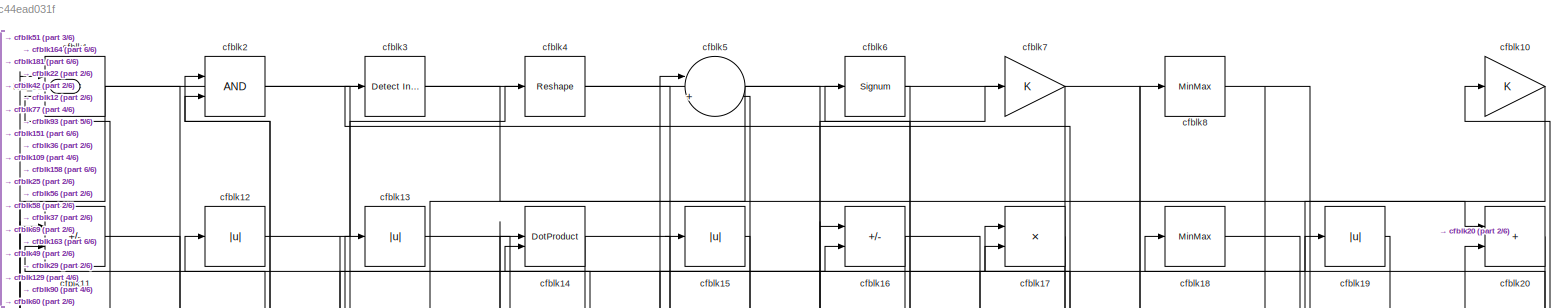
[diagram: root canvas - part 1/6, full width, top band]
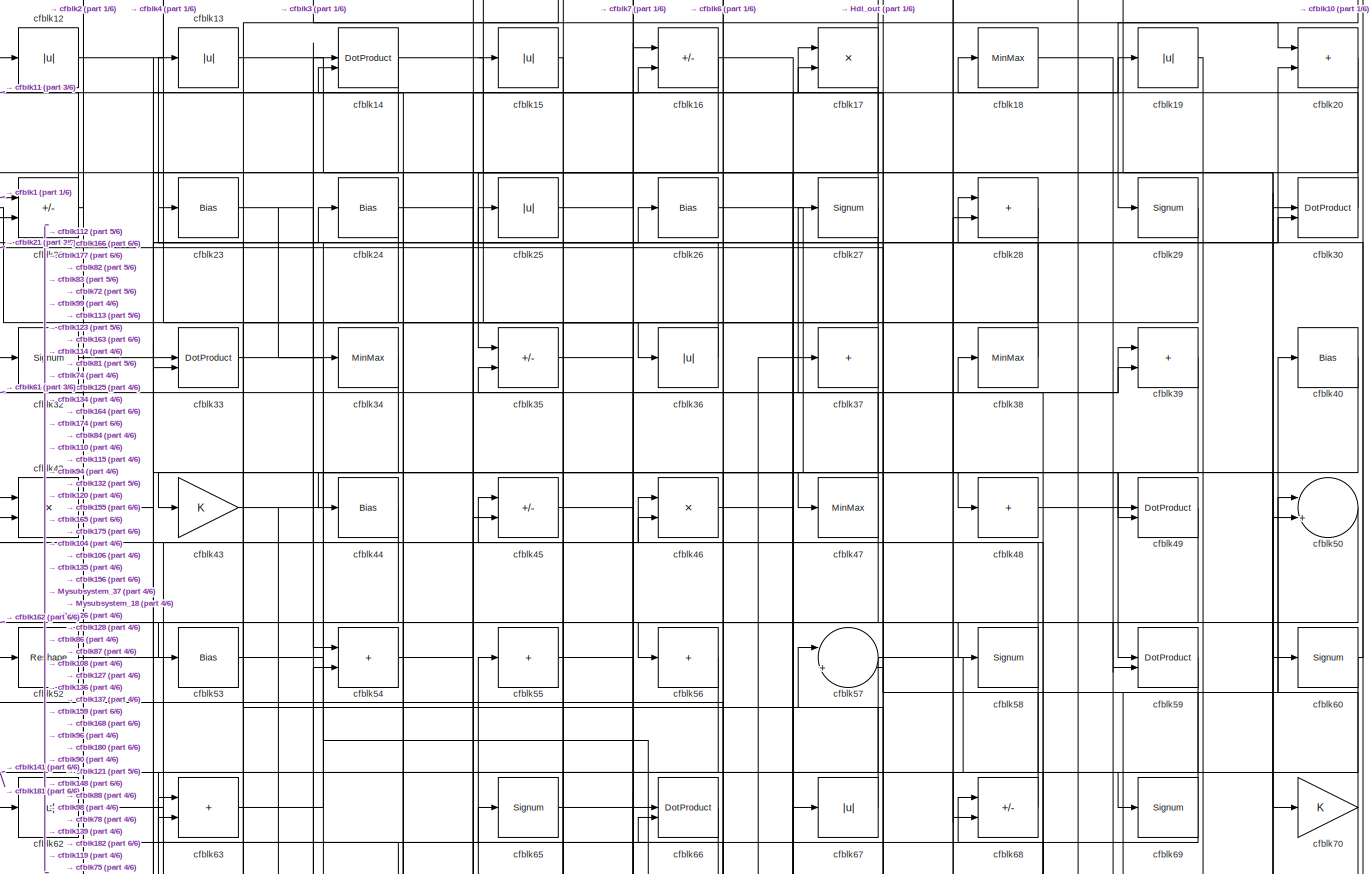
[diagram: root canvas - part 2/6, full width, top band]
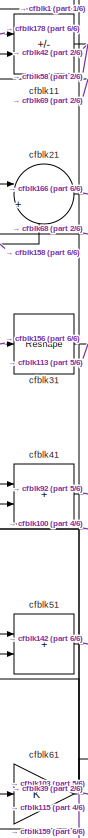
[diagram: root canvas - part 3/6, top left region]
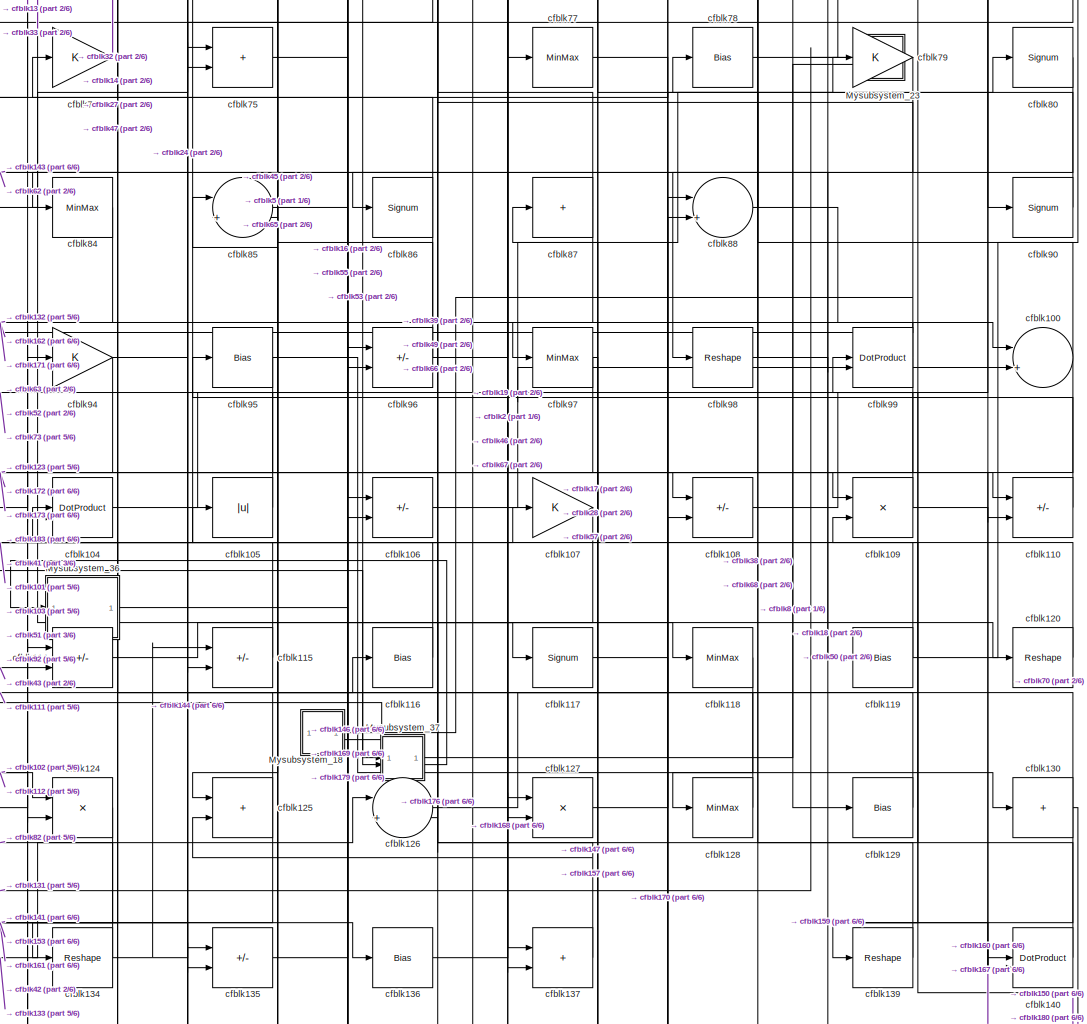
[diagram: root canvas - part 4/6, central region]
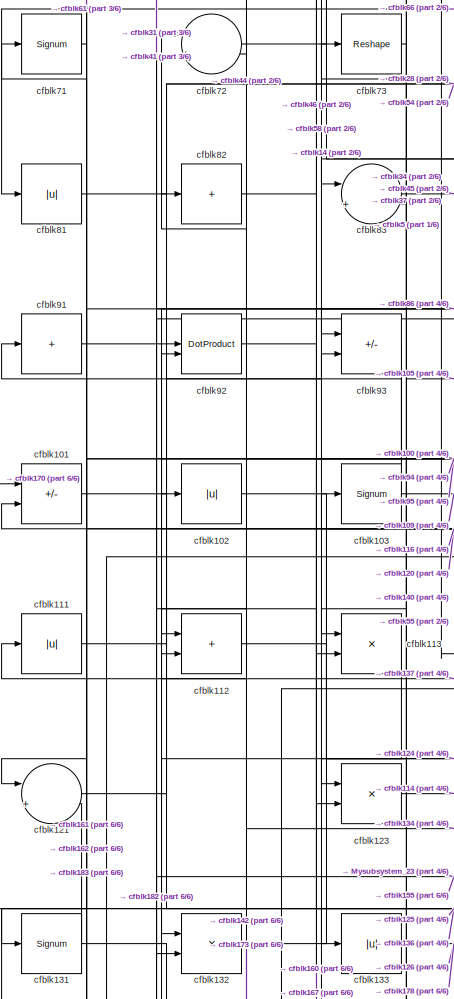
[diagram: root canvas - part 5/6, middle left region]
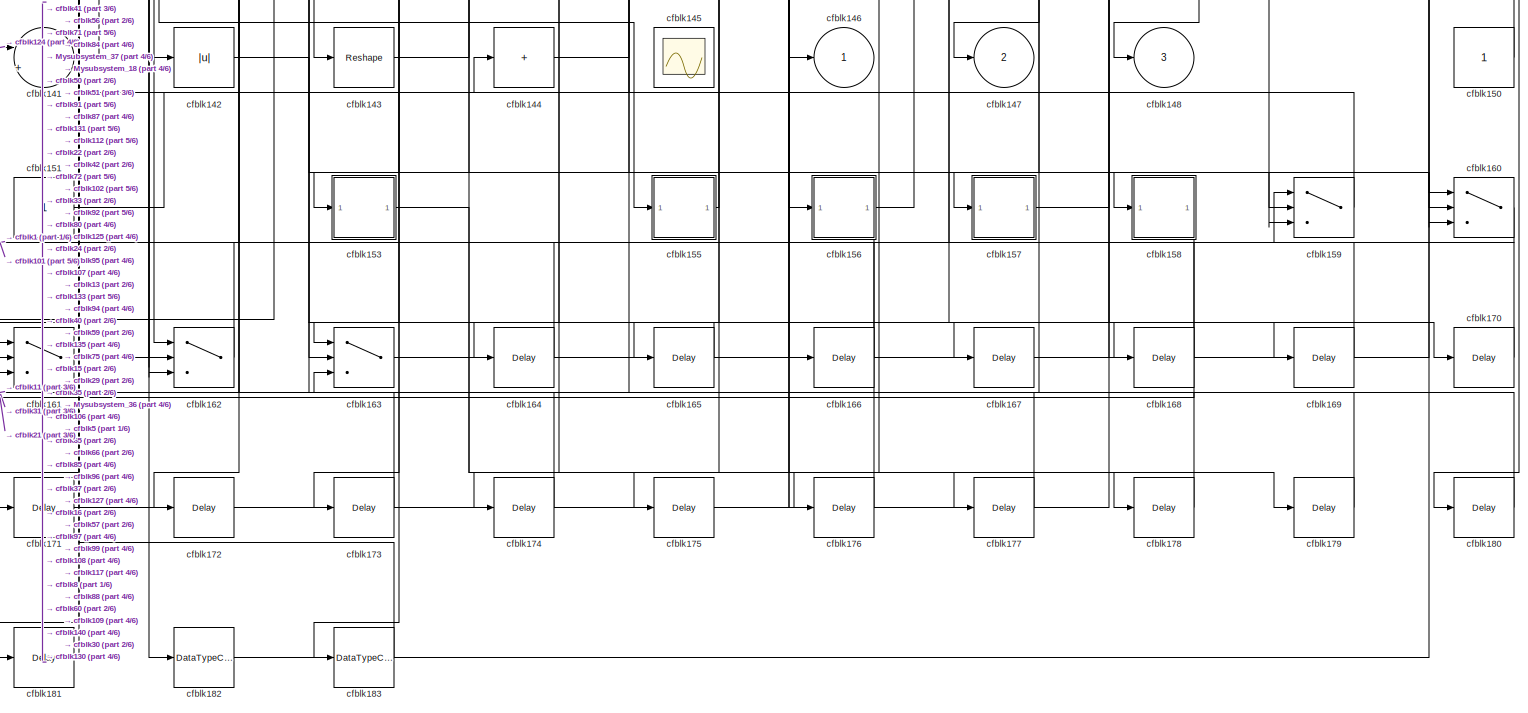
[diagram: root canvas - part 6/6, full width, bottom band]
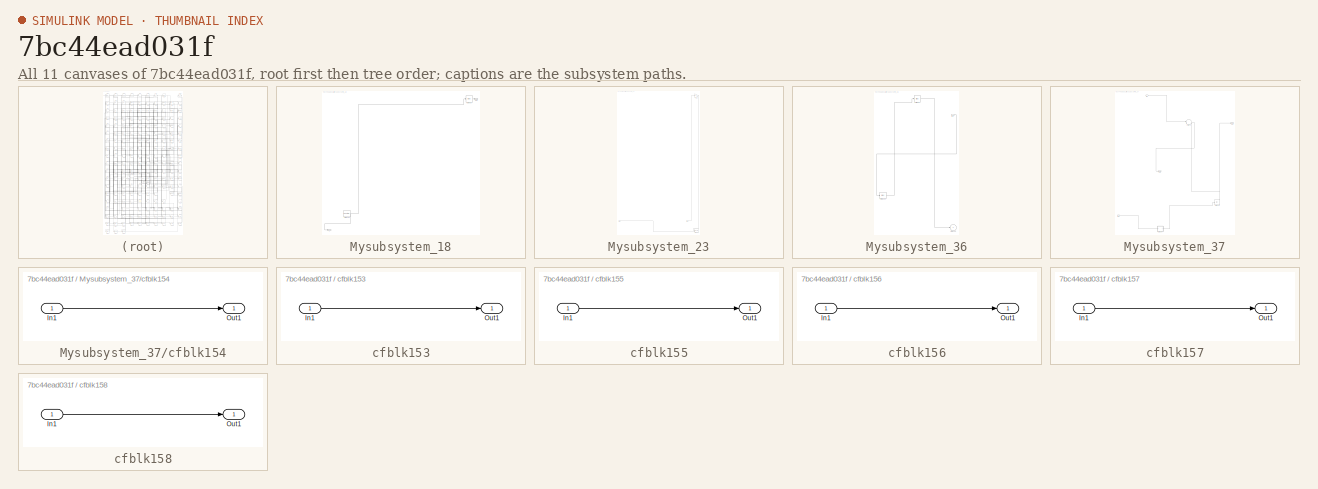
[diagram: thumbnail index - all 11 canvases of the model, root first then tree order]
MODEL slx_7bc44ead031f
KIND model
CONFIG AbsTol = auto
CONFIG EnableMultiTasking = off
CONFIG FixedStep = auto
CONFIG MaxStep = auto
CONFIG MinStep = auto
CONFIG RelTol = 1e-3
CONFIG SampleTimeConstraint = Unconstrained
CONFIG SolverName = VariableStepAuto
CONFIG StartTime = 0.0
CONFIG StopTime = 10.0
BLOCK [Outport] Hdl_out
  OutDataTypeStr = uint8
  Port = 4
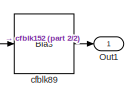
[diagram: Mysubsystem_18 - part 1/2, top right region]
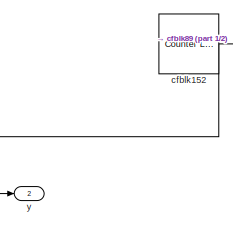
[diagram: Mysubsystem_18 - part 2/2, bottom left region]
BLOCK [SubSystem] Mysubsystem_18
  RTWFcnName = Mysubsystem_18
  RTWFcnNameOpts = User specified
  RTWFileNameOpts = Use function name
  RTWSystemCode = Reusable function
  TreatAsAtomicUnit = on
BLOCK [Outport] Mysubsystem_18/Out1
BLOCK [Reference] Mysubsystem_18/cfblk152  REF=hdlsllib/Sources/Counter
Limited
  SourceBlock = hdlsllib/Sources/Counter\nLimited
  SourceType = Counter Limited
BLOCK [Bias] Mysubsystem_18/cfblk89
  Bias = 0.0
  SaturateOnIntegerOverflow = off
BLOCK [Outport] Mysubsystem_18/y
  Port = 2
BLOCK [SubSystem] Mysubsystem_23
  RTWFcnName = Mysubsystem_23
  RTWFcnNameOpts = User specified
  RTWFileNameOpts = Use function name
  RTWSystemCode = Reusable function
  TreatAsAtomicUnit = on
BLOCK [Inport] Mysubsystem_23/In1
BLOCK [Inport] Mysubsystem_23/In2
  Port = 2
BLOCK [Record] Mysubsystem_23/cfblk149
  CompatibilityTag = XY
  FileSettingsInternal = {"entries":[{"content":{"excelSettings":{"content":{},"type":"Streamout.ExcelSettings"}},"type":"Streamout.FileSettingStorage","uuid":""}],"packageUris":["http:\/\/schema.mathworks.com\/mf0\/streamout_blocks\/R2020a"],"version":"1.0"}
  Layout = [1 1]
  SignalsInternal = {"entries":[{"content":{},"type":"RecordBlkView.InputSignals","uuid":""}],"packageUris":["http:\/\/schema.mathworks.com\/mf0\/streamout_blocks\/R2020a"],"version":"1.0"}
  VisualizationBindings = {"xyplotplugin":{"info":[{"series":[],"subplotID":1}]}}
  st = -1
BLOCK [Gain] Mysubsystem_23/cfblk9
BLOCK [SubSystem] Mysubsystem_36
  RTWFcnName = Mysubsystem_36
  RTWFcnNameOpts = User specified
  RTWFileNameOpts = Use function name
  RTWSystemCode = Reusable function
  TreatAsAtomicUnit = on
BLOCK [Inport] Mysubsystem_36/In1
BLOCK [Bias] Mysubsystem_36/cfblk122
  Bias = 0.0
  SaturateOnIntegerOverflow = off
BLOCK [Outport] Mysubsystem_36/cfblk146
  VectorParamsAs1DForOutWhenUnconnected = off
BLOCK [Bias] Mysubsystem_36/cfblk64
  Bias = 0.0
  SaturateOnIntegerOverflow = off
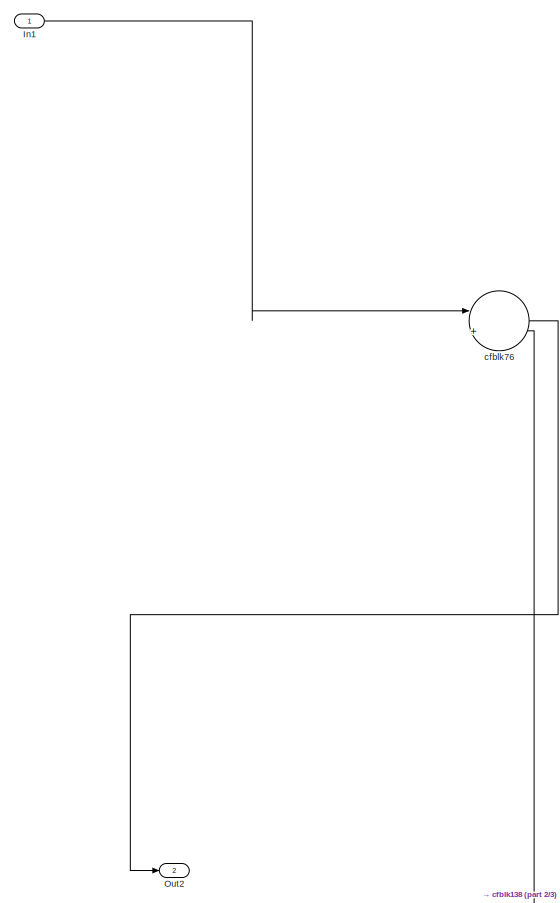
[diagram: Mysubsystem_37 - part 1/3, top center region]
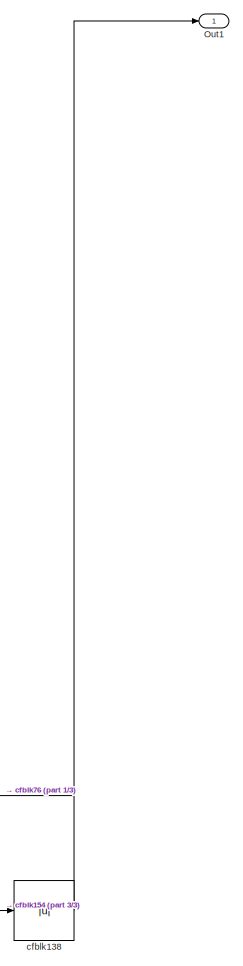
[diagram: Mysubsystem_37 - part 2/3, middle right region]
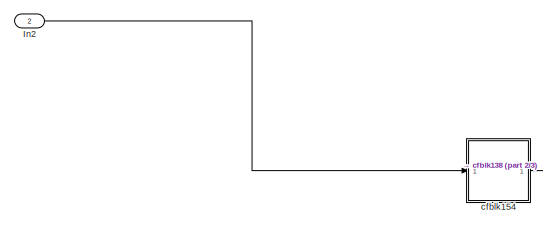
[diagram: Mysubsystem_37 - part 3/3, bottom left region]
BLOCK [SubSystem] Mysubsystem_37
  RTWFcnName = Mysubsystem_37
  RTWFcnNameOpts = User specified
  RTWFileNameOpts = Use function name
  RTWSystemCode = Reusable function
  TreatAsAtomicUnit = on
BLOCK [Inport] Mysubsystem_37/In1
BLOCK [Inport] Mysubsystem_37/In2
  Port = 2
BLOCK [Outport] Mysubsystem_37/Out1
BLOCK [Outport] Mysubsystem_37/Out2
  Port = 2
BLOCK [Abs] Mysubsystem_37/cfblk138
  SaturateOnIntegerOverflow = off
BLOCK [SubSystem] Mysubsystem_37/cfblk154
  LibrarySourceBlock = hdlsllib/Ports &\nSubsystems/Subsystem
BLOCK [Inport] Mysubsystem_37/cfblk154/In1
BLOCK [Outport] Mysubsystem_37/cfblk154/Out1
BLOCK [Sum] Mysubsystem_37/cfblk76
  Inputs = |++
BLOCK [RelationalOperator] cfblk1
  InputSameDT = off
  Operator = <=
  OutDataTypeStr = boolean
BLOCK [Gain] cfblk10
  OutDataTypeStr = uint8
BLOCK [Sum] cfblk100
  Inputs = |++
  OutDataTypeStr = uint8
BLOCK [Sum] cfblk101
  IconShape = rectangular
  Inputs = +-
  OutDataTypeStr = uint8
BLOCK [Abs] cfblk102
  OutDataTypeStr = uint8
  SaturateOnIntegerOverflow = off
BLOCK [Signum] cfblk103
BLOCK [DotProduct] cfblk104
  OutDataTypeStr = uint8
BLOCK [Abs] cfblk105
  OutDataTypeStr = uint8
  SaturateOnIntegerOverflow = off
BLOCK [Sum] cfblk106
  IconShape = rectangular
  Inputs = +-
  OutDataTypeStr = uint8
BLOCK [Gain] cfblk107
  OutDataTypeStr = uint8
BLOCK [Sum] cfblk108
  IconShape = rectangular
  Inputs = +-
  OutDataTypeStr = uint8
BLOCK [Product] cfblk109
  Inputs = */
  OutDataTypeStr = uint8
  RndMeth = Zero
  SaturateOnIntegerOverflow = on
BLOCK [Sum] cfblk11
  IconShape = rectangular
  Inputs = +-
  OutDataTypeStr = uint8
BLOCK [Sum] cfblk110
  IconShape = rectangular
  Inputs = +-
  OutDataTypeStr = uint8
BLOCK [Abs] cfblk111
  OutDataTypeStr = uint8
  SaturateOnIntegerOverflow = off
BLOCK [Sum] cfblk112
  IconShape = rectangular
  OutDataTypeStr = uint8
BLOCK [Product] cfblk113
  Inputs = */
  OutDataTypeStr = uint8
  RndMeth = Zero
  SaturateOnIntegerOverflow = on
BLOCK [Sum] cfblk114
  IconShape = rectangular
  Inputs = +-
  OutDataTypeStr = uint8
BLOCK [Sum] cfblk115
  IconShape = rectangular
  Inputs = +-
  OutDataTypeStr = uint8
BLOCK [Bias] cfblk116
  Bias = 0.0
  SaturateOnIntegerOverflow = off
BLOCK [Signum] cfblk117
BLOCK [MinMax] cfblk118
  OutDataTypeStr = uint8
BLOCK [Bias] cfblk119
  Bias = 0.0
  SaturateOnIntegerOverflow = off
BLOCK [Abs] cfblk12
  OutDataTypeStr = uint8
  SaturateOnIntegerOverflow = off
BLOCK [Reshape] cfblk120
BLOCK [Sum] cfblk121
  Inputs = |++
  OutDataTypeStr = uint8
BLOCK [Product] cfblk123
  Inputs = */
  OutDataTypeStr = uint8
  RndMeth = Zero
  SaturateOnIntegerOverflow = on
BLOCK [Product] cfblk124
  Inputs = */
  OutDataTypeStr = uint8
  RndMeth = Zero
  SaturateOnIntegerOverflow = on
BLOCK [Sum] cfblk125
  IconShape = rectangular
  OutDataTypeStr = uint8
BLOCK [Sum] cfblk126
  Inputs = |++
  OutDataTypeStr = uint8
BLOCK [Product] cfblk127
  Inputs = */
  OutDataTypeStr = uint8
  RndMeth = Zero
  SaturateOnIntegerOverflow = on
BLOCK [MinMax] cfblk128
  OutDataTypeStr = uint8
BLOCK [Bias] cfblk129
  Bias = 0.0
  SaturateOnIntegerOverflow = off
BLOCK [Abs] cfblk13
  OutDataTypeStr = uint8
  SaturateOnIntegerOverflow = off
BLOCK [Sum] cfblk130
  IconShape = rectangular
  Inputs = +
  OutDataTypeStr = uint8
BLOCK [Signum] cfblk131
BLOCK [Product] cfblk132
  Inputs = */
  OutDataTypeStr = uint8
  RndMeth = Zero
  SaturateOnIntegerOverflow = on
BLOCK [Abs] cfblk133
  OutDataTypeStr = uint8
  SaturateOnIntegerOverflow = off
BLOCK [Reshape] cfblk134
BLOCK [Sum] cfblk135
  IconShape = rectangular
  Inputs = +-
  OutDataTypeStr = uint8
BLOCK [Bias] cfblk136
  Bias = 0.0
  SaturateOnIntegerOverflow = off
BLOCK [Sum] cfblk137
  IconShape = rectangular
  OutDataTypeStr = uint8
BLOCK [Reshape] cfblk139
BLOCK [DotProduct] cfblk14
  OutDataTypeStr = uint8
BLOCK [DotProduct] cfblk140
  OutDataTypeStr = uint8
BLOCK [Sum] cfblk141
  Inputs = |++
  OutDataTypeStr = uint8
BLOCK [Abs] cfblk142
  OutDataTypeStr = uint8
  SaturateOnIntegerOverflow = off
BLOCK [Reshape] cfblk143
BLOCK [Sum] cfblk144
  IconShape = rectangular
  Inputs = +
  OutDataTypeStr = uint8
BLOCK [Scope] cfblk145
  Floating = on
  NumInputPorts = 1
  ScopeSpecificationString = Simulink.scopes.TimeScopeBlockCfg('CurrentConfiguration', extmgr.ConfigurationSet(extmgr.Configuration('Core','General UI',true,'FigureColor',[0.156862745098039 0.156862745098039 0.156862745098039]),extmgr.Configuration('Core','Source UI',true),extmgr.Configuration('Sources','WiredSimulink',true,'DataLoggingVariableName','ScopeData1','DataLoggingSaveFormat','StructureWithTime','DataLoggingLimitDat...<+2713ch>
BLOCK [Outport] cfblk146
  OutDataTypeStr = uint8
  VectorParamsAs1DForOutWhenUnconnected = off
BLOCK [Outport] cfblk147
  OutDataTypeStr = uint8
  Port = 2
  VectorParamsAs1DForOutWhenUnconnected = off
BLOCK [Outport] cfblk148
  OutDataTypeStr = uint8
  Port = 3
  VectorParamsAs1DForOutWhenUnconnected = off
BLOCK [Abs] cfblk15
  OutDataTypeStr = uint8
  SaturateOnIntegerOverflow = off
BLOCK [Constant] cfblk150
  OutDataTypeStr = uint8
  SampleTime = -1
BLOCK [Constant] cfblk151
  OutDataTypeStr = uint8
  SampleTime = -1
BLOCK [SubSystem] cfblk153
  LibrarySourceBlock = hdlsllib/Ports &\nSubsystems/Subsystem
BLOCK [Inport] cfblk153/In1
BLOCK [Outport] cfblk153/Out1
BLOCK [SubSystem] cfblk155
  LibrarySourceBlock = hdlsllib/Ports &\nSubsystems/Subsystem
BLOCK [Inport] cfblk155/In1
BLOCK [Outport] cfblk155/Out1
BLOCK [SubSystem] cfblk156
  LibrarySourceBlock = hdlsllib/Ports &\nSubsystems/Subsystem
BLOCK [Inport] cfblk156/In1
BLOCK [Outport] cfblk156/Out1
BLOCK [SubSystem] cfblk157
  LibrarySourceBlock = hdlsllib/Ports &\nSubsystems/Subsystem
BLOCK [Inport] cfblk157/In1
BLOCK [Outport] cfblk157/Out1
BLOCK [SubSystem] cfblk158
  LibrarySourceBlock = hdlsllib/Ports &\nSubsystems/Subsystem
BLOCK [Inport] cfblk158/In1
BLOCK [Outport] cfblk158/Out1
BLOCK [Switch] cfblk159
  InputSameDT = off
  OutDataTypeStr = uint8
  SaturateOnIntegerOverflow = off
BLOCK [Sum] cfblk16
  IconShape = rectangular
  Inputs = +-
  OutDataTypeStr = uint8
BLOCK [Switch] cfblk160
  InputSameDT = off
  OutDataTypeStr = uint8
  SaturateOnIntegerOverflow = off
BLOCK [Switch] cfblk161
  InputSameDT = off
  OutDataTypeStr = uint8
  SaturateOnIntegerOverflow = off
BLOCK [Switch] cfblk162
  InputSameDT = off
  OutDataTypeStr = uint8
  SaturateOnIntegerOverflow = off
BLOCK [Switch] cfblk163
  InputSameDT = off
  OutDataTypeStr = uint8
  SaturateOnIntegerOverflow = off
BLOCK [Delay] cfblk164
  InputPortMap = u0
  SampleTime = 1
BLOCK [Delay] cfblk165
  InputPortMap = u0
  SampleTime = 1
BLOCK [Delay] cfblk166
  InputPortMap = u0
  SampleTime = 1
BLOCK [Delay] cfblk167
  InputPortMap = u0
  SampleTime = 1
BLOCK [Delay] cfblk168
  InputPortMap = u0
  SampleTime = 1
BLOCK [Delay] cfblk169
  InputPortMap = u0
  SampleTime = 1
BLOCK [Product] cfblk17
  Inputs = */
  OutDataTypeStr = uint8
  RndMeth = Zero
  SaturateOnIntegerOverflow = on
BLOCK [Delay] cfblk170
  InputPortMap = u0
  SampleTime = 1
BLOCK [Delay] cfblk171
  InputPortMap = u0
  SampleTime = 1
BLOCK [Delay] cfblk172
  InputPortMap = u0
  SampleTime = 1
BLOCK [Delay] cfblk173
  InputPortMap = u0
  SampleTime = 1
BLOCK [Delay] cfblk174
  InputPortMap = u0
  SampleTime = 1
BLOCK [Delay] cfblk175
  InputPortMap = u0
  SampleTime = 1
BLOCK [Delay] cfblk176
  InputPortMap = u0
  SampleTime = 1
BLOCK [Delay] cfblk177
  InputPortMap = u0
  SampleTime = 1
BLOCK [Delay] cfblk178
  InputPortMap = u0
  SampleTime = 1
BLOCK [Delay] cfblk179
  InputPortMap = u0
  SampleTime = 1
BLOCK [MinMax] cfblk18
  OutDataTypeStr = uint8
BLOCK [Delay] cfblk180
  InputPortMap = u0
  SampleTime = 1
BLOCK [Delay] cfblk181
  InputPortMap = u0
  SampleTime = 1
BLOCK [DataTypeConversion] cfblk182
  OutDataTypeStr = uint8
  RndMeth = Floor
  SaturateOnIntegerOverflow = off
BLOCK [DataTypeConversion] cfblk183
  OutDataTypeStr = uint8
  RndMeth = Floor
  SaturateOnIntegerOverflow = off
BLOCK [Abs] cfblk19
  OutDataTypeStr = uint8
  SaturateOnIntegerOverflow = off
BLOCK [Logic] cfblk2
  AllPortsSameDT = off
  OutDataTypeStr = boolean
BLOCK [Sum] cfblk20
  IconShape = rectangular
  OutDataTypeStr = uint8
BLOCK [Sum] cfblk21
  Inputs = |++
  OutDataTypeStr = uint8
BLOCK [Sum] cfblk22
  IconShape = rectangular
  Inputs = +-
  OutDataTypeStr = uint8
BLOCK [Bias] cfblk23
  Bias = 0.0
  SaturateOnIntegerOverflow = off
BLOCK [Bias] cfblk24
  Bias = 0.0
  SaturateOnIntegerOverflow = off
BLOCK [Abs] cfblk25
  OutDataTypeStr = uint8
  SaturateOnIntegerOverflow = off
BLOCK [Bias] cfblk26
  Bias = 0.0
  SaturateOnIntegerOverflow = off
BLOCK [Signum] cfblk27
BLOCK [Sum] cfblk28
  IconShape = rectangular
  OutDataTypeStr = uint8
BLOCK [Signum] cfblk29
BLOCK [Reference] cfblk3  REF=simulink/Logic and Bit
Operations/Detect
Increase
  LibrarySourceBlock = hdlsllib/Logic and Bit\nOperations/Detect\nIncrease
  SourceBlock = simulink/Logic and Bit\nOperations/Detect\nIncrease
  SourceType = Detect Increase
BLOCK [DotProduct] cfblk30
  OutDataTypeStr = uint8
BLOCK [Reshape] cfblk31
BLOCK [Signum] cfblk32
BLOCK [DotProduct] cfblk33
  OutDataTypeStr = uint8
BLOCK [MinMax] cfblk34
  OutDataTypeStr = uint8
BLOCK [Sum] cfblk35
  IconShape = rectangular
  Inputs = +-
  OutDataTypeStr = uint8
BLOCK [Abs] cfblk36
  OutDataTypeStr = uint8
  SaturateOnIntegerOverflow = off
BLOCK [Sum] cfblk37
  IconShape = rectangular
  Inputs = +
  OutDataTypeStr = uint8
BLOCK [MinMax] cfblk38
  OutDataTypeStr = uint8
BLOCK [Sum] cfblk39
  IconShape = rectangular
  OutDataTypeStr = uint8
BLOCK [Reshape] cfblk4
BLOCK [Bias] cfblk40
  Bias = 0.0
  SaturateOnIntegerOverflow = off
BLOCK [Sum] cfblk41
  IconShape = rectangular
  OutDataTypeStr = uint8
BLOCK [Product] cfblk42
  Inputs = */
  OutDataTypeStr = uint8
  RndMeth = Zero
  SaturateOnIntegerOverflow = on
BLOCK [Gain] cfblk43
  OutDataTypeStr = uint8
BLOCK [Bias] cfblk44
  Bias = 0.0
  SaturateOnIntegerOverflow = off
BLOCK [Sum] cfblk45
  IconShape = rectangular
  Inputs = +-
  OutDataTypeStr = uint8
BLOCK [Product] cfblk46
  Inputs = */
  OutDataTypeStr = uint8
  RndMeth = Zero
  SaturateOnIntegerOverflow = on
BLOCK [MinMax] cfblk47
  OutDataTypeStr = uint8
BLOCK [Sum] cfblk48
  IconShape = rectangular
  Inputs = +
  OutDataTypeStr = uint8
BLOCK [DotProduct] cfblk49
  OutDataTypeStr = uint8
BLOCK [Sum] cfblk5
  Inputs = |++
  OutDataTypeStr = uint8
BLOCK [Sum] cfblk50
  Inputs = |++
  OutDataTypeStr = uint8
BLOCK [Sum] cfblk51
  IconShape = rectangular
  OutDataTypeStr = uint8
BLOCK [Reshape] cfblk52
BLOCK [Bias] cfblk53
  Bias = 0.0
  SaturateOnIntegerOverflow = off
BLOCK [Sum] cfblk54
  IconShape = rectangular
  OutDataTypeStr = uint8
BLOCK [Sum] cfblk55
  IconShape = rectangular
  Inputs = +
  OutDataTypeStr = uint8
BLOCK [Sum] cfblk56
  IconShape = rectangular
  Inputs = +
  OutDataTypeStr = uint8
BLOCK [Sum] cfblk57
  Inputs = |++
  OutDataTypeStr = uint8
BLOCK [Signum] cfblk58
BLOCK [DotProduct] cfblk59
  OutDataTypeStr = uint8
BLOCK [Signum] cfblk6
BLOCK [Signum] cfblk60
BLOCK [Gain] cfblk61
  OutDataTypeStr = uint8
BLOCK [Abs] cfblk62
  OutDataTypeStr = uint8
  SaturateOnIntegerOverflow = off
BLOCK [Sum] cfblk63
  IconShape = rectangular
  OutDataTypeStr = uint8
BLOCK [Signum] cfblk65
BLOCK [DotProduct] cfblk66
  OutDataTypeStr = uint8
BLOCK [Abs] cfblk67
  OutDataTypeStr = uint8
  SaturateOnIntegerOverflow = off
BLOCK [Sum] cfblk68
  IconShape = rectangular
  Inputs = +-
  OutDataTypeStr = uint8
BLOCK [Signum] cfblk69
BLOCK [Gain] cfblk7
  OutDataTypeStr = uint8
BLOCK [Gain] cfblk70
  OutDataTypeStr = uint8
BLOCK [Signum] cfblk71
BLOCK [Sum] cfblk72
  Inputs = |++
  OutDataTypeStr = uint8
BLOCK [Reshape] cfblk73
BLOCK [Gain] cfblk74
  OutDataTypeStr = uint8
BLOCK [Sum] cfblk75
  IconShape = rectangular
  OutDataTypeStr = uint8
BLOCK [MinMax] cfblk77
  OutDataTypeStr = uint8
BLOCK [Bias] cfblk78
  Bias = 0.0
  SaturateOnIntegerOverflow = off
BLOCK [Gain] cfblk79
  OutDataTypeStr = uint8
BLOCK [MinMax] cfblk8
  OutDataTypeStr = uint8
BLOCK [Signum] cfblk80
BLOCK [Abs] cfblk81
  OutDataTypeStr = uint8
  SaturateOnIntegerOverflow = off
BLOCK [Sum] cfblk82
  IconShape = rectangular
  Inputs = +
  OutDataTypeStr = uint8
BLOCK [Sum] cfblk83
  Inputs = |++
  OutDataTypeStr = uint8
BLOCK [MinMax] cfblk84
  OutDataTypeStr = uint8
BLOCK [Sum] cfblk85
  Inputs = |++
  OutDataTypeStr = uint8
BLOCK [Signum] cfblk86
BLOCK [Sum] cfblk87
  IconShape = rectangular
  Inputs = +
  OutDataTypeStr = uint8
BLOCK [Sum] cfblk88
  Inputs = |++
  OutDataTypeStr = uint8
BLOCK [Signum] cfblk90
BLOCK [Sum] cfblk91
  IconShape = rectangular
  Inputs = +
  OutDataTypeStr = uint8
BLOCK [DotProduct] cfblk92
  OutDataTypeStr = uint8
BLOCK [Sum] cfblk93
  IconShape = rectangular
  Inputs = +-
  OutDataTypeStr = uint8
BLOCK [Gain] cfblk94
  OutDataTypeStr = uint8
BLOCK [Bias] cfblk95
  Bias = 0.0
  SaturateOnIntegerOverflow = off
BLOCK [Sum] cfblk96
  IconShape = rectangular
  Inputs = +-
  OutDataTypeStr = uint8
BLOCK [MinMax] cfblk97
  OutDataTypeStr = uint8
BLOCK [Reshape] cfblk98
BLOCK [DotProduct] cfblk99
  OutDataTypeStr = uint8
NET Mysubsystem_18/cfblk152:1 -> Mysubsystem_18/cfblk89:1, Mysubsystem_18/y:1
LINE Mysubsystem_18/cfblk89:1 -> Mysubsystem_18/Out1:1
NET Mysubsystem_18:1 -> cfblk162:2, cfblk52:1
LINE Mysubsystem_18:2 -> cfblk161:2
LINE Mysubsystem_23/In1:1 -> Mysubsystem_23/cfblk149:2
LINE Mysubsystem_23/In2:1 -> Mysubsystem_23/cfblk9:1
LINE Mysubsystem_23/cfblk9:1 -> Mysubsystem_23/cfblk149:1
LINE Mysubsystem_36/In1:1 -> Mysubsystem_36/cfblk122:1
LINE Mysubsystem_36/cfblk122:1 -> Mysubsystem_36/cfblk64:1
LINE Mysubsystem_36/cfblk64:1 -> Mysubsystem_36/cfblk146:1
LINE Mysubsystem_36:1 -> cfblk146:1
LINE Mysubsystem_37/In1:1 -> Mysubsystem_37/cfblk76:1
LINE Mysubsystem_37/In2:1 -> Mysubsystem_37/cfblk154:1
NET Mysubsystem_37/cfblk138:1 -> Mysubsystem_37/Out1:1, Mysubsystem_37/cfblk76:2
LINE Mysubsystem_37/cfblk154/In1:1 -> Mysubsystem_37/cfblk154/Out1:1
LINE Mysubsystem_37/cfblk154:1 -> Mysubsystem_37/cfblk138:1
LINE Mysubsystem_37/cfblk76:1 -> Mysubsystem_37/Out2:1
LINE Mysubsystem_37:1 -> Mysubsystem_23:2
LINE Mysubsystem_37:2 -> Mysubsystem_36:1
NET cfblk100:1 -> cfblk102:1, cfblk41:2
LINE cfblk101:1 -> cfblk136:1
NET cfblk102:1 -> cfblk124:1, cfblk160:2
NET cfblk103:1 -> cfblk109:1, cfblk61:1
LINE cfblk104:1 -> cfblk16:1
LINE cfblk105:1 -> cfblk73:1
NET cfblk106:1 -> cfblk100:2, cfblk79:1
LINE cfblk107:1 -> cfblk176:1
LINE cfblk108:1 -> cfblk50:2
NET cfblk109:1 -> cfblk160:1, cfblk5:2
LINE cfblk10:1 -> cfblk29:1
LINE cfblk110:1 -> cfblk95:1
LINE cfblk111:1 -> cfblk93:2
LINE cfblk112:1 -> cfblk124:2
LINE cfblk113:1 -> cfblk132:1
LINE cfblk114:1 -> cfblk118:1
LINE cfblk115:1 -> cfblk51:1
LINE cfblk116:1 -> cfblk92:2
LINE cfblk117:1 -> cfblk170:1
LINE cfblk118:1 -> cfblk128:1
NET cfblk119:1 -> cfblk17:2, cfblk28:1, cfblk85:1
NET cfblk11:1 -> cfblk42:1, cfblk58:1
NET cfblk120:1 -> cfblk101:2, cfblk65:1
LINE cfblk121:1 -> cfblk28:2
LINE cfblk123:1 -> cfblk114:1
LINE cfblk124:1 -> cfblk141:1
NET cfblk125:1 -> cfblk133:1, cfblk14:2, cfblk153:1, cfblk161:3
LINE cfblk126:1 -> cfblk88:1
LINE cfblk127:1 -> cfblk80:1
NET cfblk128:1 -> cfblk66:2, cfblk87:1
LINE cfblk129:1 -> cfblk104:1
NET cfblk12:1 -> cfblk48:1, cfblk4:1
NET cfblk130:1 -> cfblk105:1, cfblk159:3, cfblk180:1
NET cfblk131:1 -> Mysubsystem_23:1, cfblk121:2, cfblk155:1
LINE cfblk132:1 -> cfblk55:1
NET cfblk133:1 -> cfblk126:1, cfblk178:1
NET cfblk134:1 -> cfblk115:1, cfblk116:1, cfblk82:1
NET cfblk135:1 -> cfblk39:1, cfblk85:2
LINE cfblk136:1 -> cfblk67:1
NET cfblk137:1 -> cfblk111:1, cfblk125:2, cfblk46:2
LINE cfblk139:1 -> cfblk78:1
NET cfblk13:1 -> cfblk127:2, cfblk159:2
NET cfblk140:1 -> cfblk103:1, cfblk109:2
LINE cfblk141:1 -> Mysubsystem_37:2
NET cfblk142:1 -> cfblk112:2, cfblk169:1
NET cfblk143:1 -> cfblk107:1, cfblk94:1
LINE cfblk144:1 -> cfblk75:1
NET cfblk14:1 -> cfblk15:1, cfblk62:1, cfblk70:1
LINE cfblk150:1 -> cfblk99:1
LINE cfblk151:1 -> cfblk5:1
LINE cfblk153/In1:1 -> cfblk153/Out1:1
LINE cfblk153:1 -> cfblk177:1
LINE cfblk155/In1:1 -> cfblk155/Out1:1
LINE cfblk155:1 -> cfblk35:2
LINE cfblk156/In1:1 -> cfblk156/Out1:1
NET cfblk156:1 -> cfblk31:1, cfblk37:1
LINE cfblk157/In1:1 -> cfblk157/Out1:1
LINE cfblk157:1 -> cfblk108:2
LINE cfblk158/In1:1 -> cfblk158/Out1:1
LINE cfblk158:1 -> cfblk21:2
LINE cfblk159:1 -> cfblk41:1
LINE cfblk15:1 -> cfblk175:1
LINE cfblk160:1 -> cfblk159:1
LINE cfblk161:1 -> cfblk144:1
LINE cfblk162:1 -> cfblk71:1
LINE cfblk163:1 -> cfblk8:1
LINE cfblk164:1 -> cfblk1:1
LINE cfblk165:1 -> cfblk163:2
LINE cfblk166:1 -> cfblk22:2
LINE cfblk167:1 -> cfblk140:1
LINE cfblk168:1 -> cfblk127:1
LINE cfblk169:1 -> cfblk96:1
NET cfblk16:1 -> cfblk115:2, cfblk168:1
LINE cfblk170:1 -> cfblk101:1
LINE cfblk171:1 -> cfblk88:2
LINE cfblk172:1 -> cfblk106:2
LINE cfblk173:1 -> cfblk72:2
LINE cfblk174:1 -> cfblk42:2
LINE cfblk175:1 -> cfblk66:1
LINE cfblk176:1 -> cfblk163:3
LINE cfblk177:1 -> cfblk33:1
LINE cfblk178:1 -> cfblk11:1
LINE cfblk179:1 -> cfblk135:1
NET cfblk17:1 -> cfblk137:2, cfblk33:2, cfblk44:1
LINE cfblk180:1 -> cfblk57:1
LINE cfblk181:1 -> cfblk1:2
LINE cfblk182:1 -> cfblk30:1
LINE cfblk183:1 -> cfblk91:1
LINE cfblk18:1 -> cfblk119:1
LINE cfblk19:1 -> cfblk139:1
NET cfblk1:1 -> cfblk22:1, cfblk51:2
LINE cfblk20:1 -> cfblk35:1
LINE cfblk21:1 -> cfblk166:1
NET cfblk22:1 -> cfblk12:1, cfblk2:1
NET cfblk23:1 -> cfblk34:1, cfblk54:1
NET cfblk24:1 -> cfblk110:2, cfblk163:1
LINE cfblk25:1 -> cfblk7:1
LINE cfblk26:1 -> cfblk60:1
LINE cfblk27:1 -> cfblk84:1
LINE cfblk28:1 -> cfblk43:1
LINE cfblk29:1 -> cfblk165:1
LINE cfblk2:1 -> cfblk77:1
LINE cfblk30:1 -> cfblk18:1
LINE cfblk31:1 -> cfblk113:2
LINE cfblk32:1 -> cfblk24:1
NET cfblk33:1 -> cfblk120:1, cfblk137:1
LINE cfblk34:1 -> cfblk113:1
LINE cfblk35:1 -> cfblk59:2
LINE cfblk36:1 -> cfblk25:1
NET cfblk37:1 -> Hdl_out:1, cfblk123:1
LINE cfblk38:1 -> cfblk13:1
NET cfblk39:1 -> cfblk126:2, cfblk59:1
LINE cfblk3:1 -> cfblk20:1
LINE cfblk40:1 -> cfblk174:1
LINE cfblk41:1 -> cfblk92:1
NET cfblk42:1 -> cfblk135:2, cfblk17:1, cfblk2:2
NET cfblk43:1 -> cfblk114:2, cfblk47:1
LINE cfblk44:1 -> cfblk112:1
LINE cfblk45:1 -> cfblk106:1
LINE cfblk46:1 -> cfblk108:1
NET cfblk47:1 -> cfblk134:1, cfblk27:1
LINE cfblk48:1 -> cfblk49:2
LINE cfblk49:1 -> cfblk86:1
LINE cfblk4:1 -> cfblk36:1
NET cfblk50:1 -> cfblk162:3, cfblk53:1
LINE cfblk51:1 -> cfblk142:1
NET cfblk52:1 -> cfblk30:2, cfblk68:2
LINE cfblk53:1 -> Mysubsystem_37:1
LINE cfblk54:1 -> cfblk26:1
LINE cfblk55:1 -> cfblk96:2
NET cfblk56:1 -> cfblk141:2, cfblk181:1
NET cfblk57:1 -> cfblk125:1, cfblk69:1
NET cfblk58:1 -> cfblk6:1, cfblk83:1
LINE cfblk59:1 -> cfblk164:1
NET cfblk5:1 -> cfblk158:1, cfblk93:1
NET cfblk60:1 -> cfblk10:1, cfblk148:1
LINE cfblk61:1 -> cfblk39:2
LINE cfblk62:1 -> cfblk99:2
LINE cfblk63:1 -> cfblk20:2
LINE cfblk65:1 -> cfblk156:1
LINE cfblk66:1 -> cfblk81:1
LINE cfblk67:1 -> cfblk23:1
LINE cfblk68:1 -> cfblk21:1
NET cfblk69:1 -> cfblk11:2, cfblk3:1, cfblk63:2
LINE cfblk6:1 -> cfblk56:1
NET cfblk70:1 -> cfblk40:1, cfblk75:2
LINE cfblk71:1 -> cfblk161:1
LINE cfblk72:1 -> cfblk14:1
LINE cfblk73:1 -> cfblk83:2
LINE cfblk74:1 -> cfblk32:1
LINE cfblk75:1 -> cfblk117:1
LINE cfblk77:1 -> cfblk110:1
LINE cfblk78:1 -> cfblk50:1
LINE cfblk79:1 -> cfblk98:1
LINE cfblk7:1 -> cfblk49:1
LINE cfblk80:1 -> cfblk143:1
NET cfblk81:1 -> cfblk54:2, cfblk72:1
LINE cfblk82:1 -> cfblk46:1
LINE cfblk83:1 -> cfblk45:2
NET cfblk84:1 -> cfblk104:2, cfblk171:1
LINE cfblk85:1 -> cfblk179:1
NET cfblk86:1 -> cfblk132:2, cfblk74:1
NET cfblk87:1 -> cfblk162:1, cfblk63:1
NET cfblk88:1 -> cfblk100:1, cfblk38:1
NET cfblk8:1 -> cfblk129:1, cfblk90:1
LINE cfblk90:1 -> cfblk57:2
LINE cfblk91:1 -> cfblk182:1
LINE cfblk92:1 -> cfblk167:1
LINE cfblk93:1 -> cfblk121:1
NET cfblk94:1 -> cfblk131:1, cfblk160:3, cfblk16:2
NET cfblk95:1 -> cfblk123:2, cfblk130:1, cfblk183:1
NET cfblk96:1 -> cfblk19:1, cfblk45:1
NET cfblk97:1 -> cfblk147:1, cfblk173:1
NET cfblk98:1 -> cfblk140:2, cfblk68:1
NET cfblk99:1 -> cfblk157:1, cfblk172:1, cfblk97:1
note: NET lines group one-source signal fan-out (src -> all destinations, sorted); 1:1 wires keep LINE
